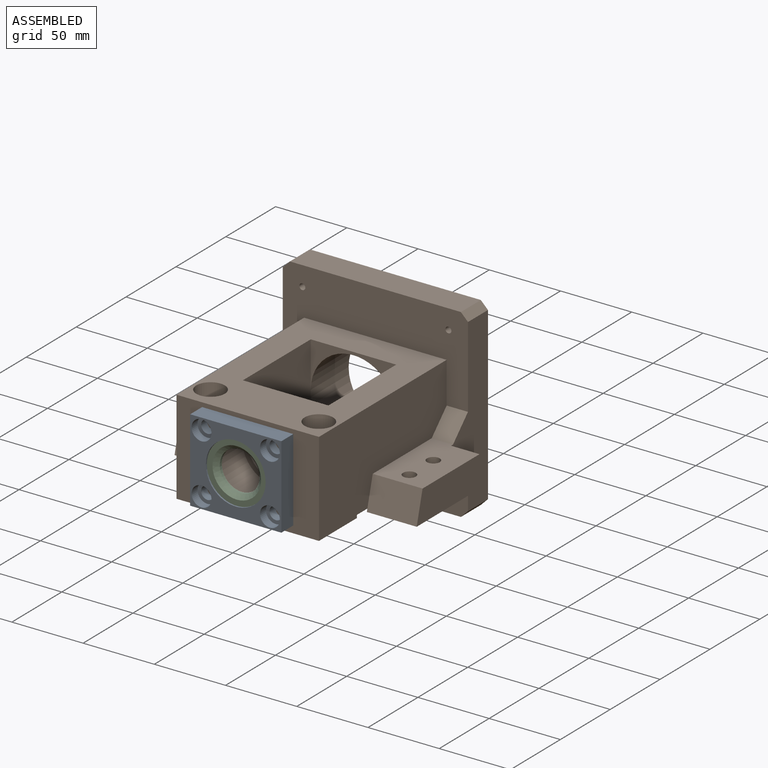
[diagram: assembled view]
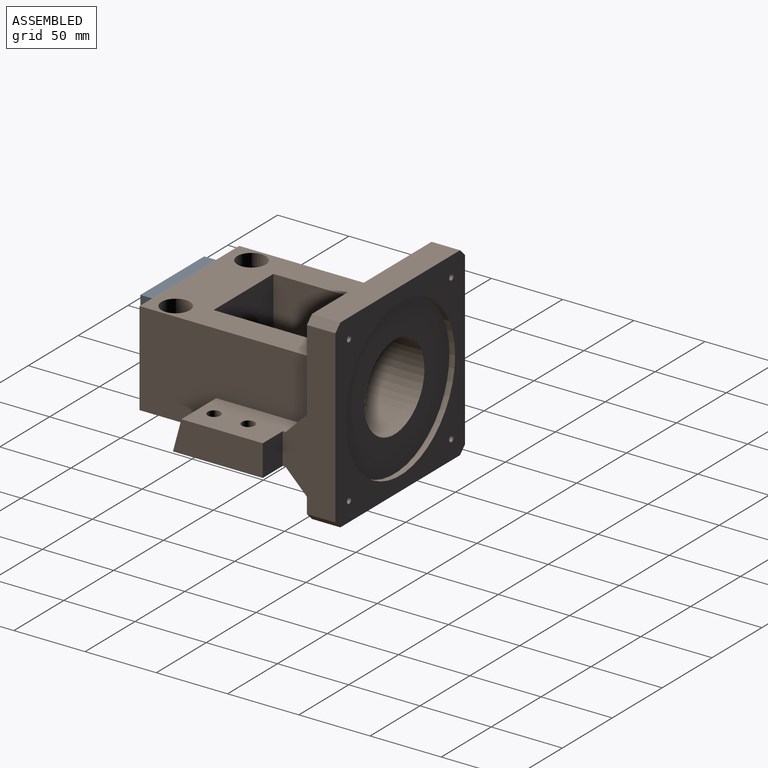
[diagram: assembled view, second angle]
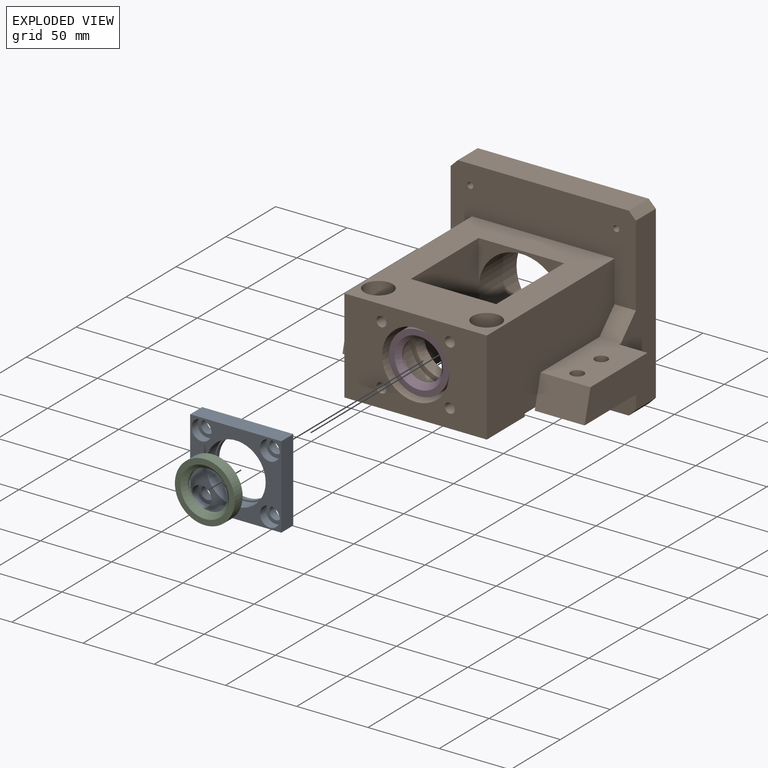
[diagram: exploded view]
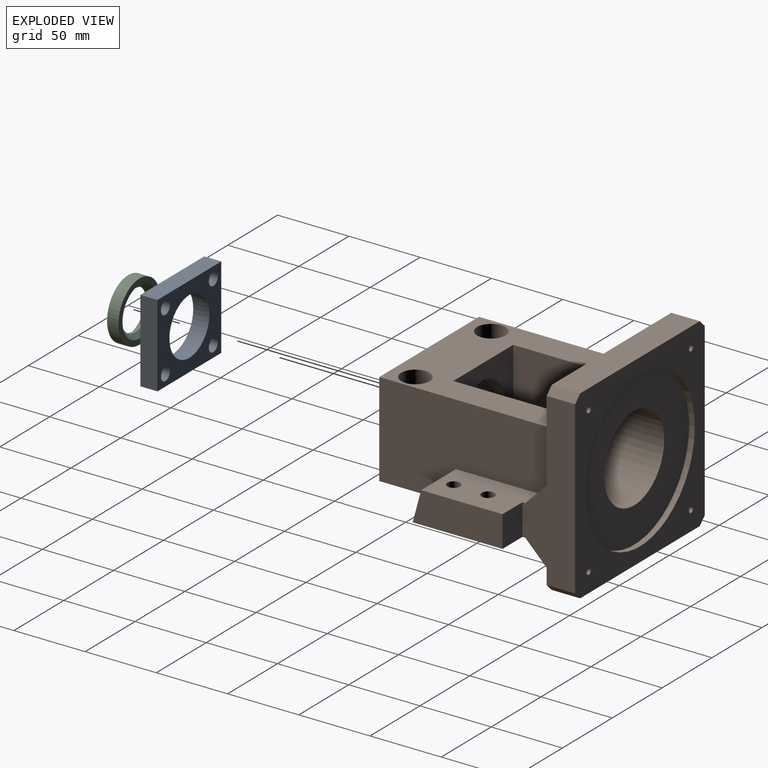
[diagram: exploded view, second angle]
ASSEMBLY  parts=4 mates=3
PART A: 21 faces, bbox 64x12x58 mm
  f0: plane 64x58mm, normal (0,-1,0), area 1710.8mm2, adj f1,f2,f3,f4,f11,f13,f15,f17
  f1: plane 58x12mm, normal (-1,0,0), area 696mm2, adj f0,f2,f4,f5
  f2: plane 64x12mm, normal (0,0,-1), area 768mm2, adj f0,f1,f3,f5
  f3: plane 58x12mm, normal (1,0,0), area 696mm2, adj f0,f2,f4,f5
  f4: plane 64x12mm, normal (0,0,1), area 768mm2, adj f0,f1,f3,f5
  f5: plane 64x58mm, normal (0,1,0), area 2200.9mm2, adj f1,f2,f3,f4,f6,f7,f8,f9
  f6: cylinder r=4.5mm len=9mm, axis (0,1,0), area 169.6mm2, adj f5,f18
  f7: cylinder r=4.5mm len=9mm, axis (0,1,0), area 169.6mm2, adj f5,f16
  f8: cylinder r=4.5mm len=9mm, axis (0,1,0), area 169.6mm2, adj f5,f14
  f9: cylinder r=4.5mm len=9mm, axis (0,1,0), area 169.6mm2, adj f5,f12
  f10: cylinder r=20mm len=40mm, axis (0,-1,0), area 377mm2, adj f5,f20
  f11: cylinder r=7mm len=14mm, axis (0,-1,0), area 263.9mm2, adj f0,f12
  f12: plane 14x14mm, normal (0,-1,0), area 90.3mm2, adj f9,f11
  f13: cylinder r=7mm len=14mm, axis (0,-1,0), area 263.9mm2, adj f0,f14
  f14: plane 14x14mm, normal (0,-1,0), area 90.3mm2, adj f8,f13
  f15: cylinder r=7mm len=14mm, axis (0,-1,0), area 263.9mm2, adj f0,f16
  f16: plane 14x14mm, normal (0,-1,0), area 90.3mm2, adj f7,f15
  f17: cylinder r=7mm len=14mm, axis (0,-1,0), area 263.9mm2, adj f0,f18
  f18: plane 14x14mm, normal (0,-1,0), area 90.3mm2, adj f6,f17
  f19: cylinder r=21mm len=42mm, axis (0,-1,0), area 1187.5mm2, adj f0,f20
  f20: plane 42x42mm, normal (0,-1,0), area 128.8mm2, adj f10,f19
PART B: 68 faces, bbox 170x148x130 mm
  f0: plane 100x66mm, normal (0,1,0), area 2654.6mm2, adj f11,f12,f14,f15,f16,f17,f33,f66
  f1: cylinder r=20mm len=40mm, axis (0,-1,0), area 251.3mm2, adj f24,f67
  f2: plane 120x20mm, normal (0,0,-1), area 2400mm2, adj f40,f42,f59,f61
  f3: plane 120x20mm, normal (0,0,1), area 2400mm2, adj f41,f43,f59,f60
  f4: plane 120x37mm, normal (-1,0,0), area 2999mm2, adj f10,f22,f30,f40,f41,f59,f60,f61
  f5: plane 120x37mm, normal (1,0,0), area 2999mm2, adj f20,f21,f32,f42,f43,f59,f60,f61
  f6: cylinder r=4.5mm len=56mm, axis (0,0,1), area 1583.4mm2, adj f33,f56
  f7: cylinder r=4.5mm len=56mm, axis (0,0,1), area 1583.4mm2, adj f33,f54
  f8: plane 63x22mm, normal (1,0,0), area 1321.2mm2, adj f20,f21,f32,f39
  f9: plane 63x22mm, normal (-1,0,0), area 1321.2mm2, adj f10,f22,f30,f38
  f10: plane 59.11x35mm, normal (0,0,1), area 1901.4mm2, adj f4,f9,f12,f22,f34,f35,f38,f64
  f11: plane 100x90mm, normal (0,0,-1), area 4920mm2, adj f0,f12,f14,f16,f17,f18,f29,f31
  f12: plane 128x66mm, normal (-1,0,0), area 6619.8mm2, adj f0,f10,f11,f15,f33,f38,f44,f60
  f13: plane 60x32mm, normal (0,-1,0), area 506.3mm2, adj f15,f16,f17,f19
  f14: plane 128x66mm, normal (1,0,0), area 6619.8mm2, adj f0,f11,f15,f20,f33,f39,f44,f60
  f15: plane 128x100mm, normal (0,0,1), area 8091.7mm2, adj f0,f12,f13,f14,f16,f17,f44,f53
  f16: plane 68x64mm, normal (1,0,0), area 4352mm2, adj f0,f11,f13,f15,f18
  f17: plane 68x64mm, normal (-1,0,0), area 4352mm2, adj f0,f11,f13,f15,f18
  f18: plane 60x32mm, normal (0,-1,0), area 506.3mm2, adj f11,f16,f17,f19
  f19: cylinder r=30mm len=60mm, axis (0,1,0), area 7162.8mm2, adj f13,f18,f57
  f20: plane 59.11x35mm, normal (0,0,1), area 1901.4mm2, adj f5,f8,f14,f21,f36,f37,f39,f65
  f21: plane 22x20mm, normal (0,1,0), area 440mm2, adj f5,f8,f20,f32
  f22: plane 22x20mm, normal (0,1,0), area 440mm2, adj f4,f9,f10,f30
  f23: cylinder r=23.5mm len=47mm, axis (0,-1,0), area 4134.3mm2, adj f24,f44
  f24: plane 47x47mm, normal (0,-1,0), area 478.3mm2, adj f1,f23
  f25: cylinder r=2.1mm len=20mm, axis (0,1,0), area 263.9mm2, adj f59,f60
  f26: cylinder r=2.1mm len=20mm, axis (0,1,0), area 263.9mm2, adj f59,f61
  f27: cylinder r=2.1mm len=20mm, axis (0,1,0), area 263.9mm2, adj f59,f61
  f28: cylinder r=2.1mm len=20mm, axis (0,1,0), area 263.9mm2, adj f59,f60
  f29: plane 80x17mm, normal (1,0,0), area 272mm2, adj f11,f30,f38,f61,f63
  f30: plane 65x35mm, normal (0,0,-1), area 2107.8mm2, adj f4,f9,f22,f29,f34,f35,f38,f63
  f31: plane 80x17mm, normal (-1,0,0), area 272mm2, adj f11,f32,f39,f61,f62
  f32: plane 65x35mm, normal (0,0,-1), area 2107.8mm2, adj f5,f8,f21,f31,f36,f37,f39,f62
  f33: plane 100x38mm, normal (0,0,-1), area 3672.8mm2, adj f0,f6,f7,f12,f14,f44
  f34: cylinder r=4.5mm len=22mm, axis (0,0,-1), area 622mm2, adj f10,f30
  f35: cylinder r=4.5mm len=22mm, axis (0,0,-1), area 622mm2, adj f10,f30
  f36: cylinder r=4.5mm len=22mm, axis (0,0,-1), area 622mm2, adj f20,f32
  f37: cylinder r=4.5mm len=22mm, axis (0,0,-1), area 622mm2, adj f20,f32
  f38: plane 35x22mm, normal (0,-0.97,0.26), area 797.2mm2, adj f9,f10,f12,f29,f30
  f39: plane 35x22mm, normal (0,-0.97,0.26), area 797.2mm2, adj f8,f14,f20,f31,f32
  f40: plane 20x5mm, normal (-0.71,0,-0.71), area 141.4mm2, adj f2,f4,f59,f61
  f41: plane 20x5mm, normal (-0.71,0,0.71), area 141.4mm2, adj f3,f4,f59,f60
  f42: plane 20x5mm, normal (0.71,0,-0.71), area 141.4mm2, adj f2,f5,f59,f61
  f43: plane 20x5mm, normal (0.71,0,0.71), area 141.4mm2, adj f3,f5,f59,f60
  f44: plane 100x66mm, normal (0,-1,0), area 4711.1mm2, adj f12,f14,f15,f23,f33,f46,f48,f50
  f45: cone r=0mm half-angle=59deg, axis (0,-1,0), area 44.9mm2, adj f46
  f46: cylinder r=3.5mm len=27mm, axis (0,-1,0), area 593.8mm2, adj f44,f45
  f47: cone r=0mm half-angle=59deg, axis (0,-1,0), area 44.9mm2, adj f48
  f48: cylinder r=3.5mm len=27mm, axis (0,-1,0), area 593.8mm2, adj f44,f47
  f49: cone r=0mm half-angle=59deg, axis (0,-1,0), area 44.9mm2, adj f50
  f50: cylinder r=3.5mm len=27mm, axis (0,-1,0), area 593.8mm2, adj f44,f49
  f51: cone r=0mm half-angle=59deg, axis (0,-1,0), area 44.9mm2, adj f52
  f52: cylinder r=3.5mm len=27mm, axis (0,-1,0), area 593.8mm2, adj f44,f51
  f53: cylinder r=10mm len=20mm, axis (0,0,1), area 628.3mm2, adj f15,f54
  f54: plane 20x20mm, normal (0,0,1), area 250.5mm2, adj f7,f53
  f55: cylinder r=10mm len=20mm, axis (0,0,1), area 628.3mm2, adj f15,f56
  f56: plane 20x20mm, normal (0,0,1), area 250.5mm2, adj f6,f55
  f57: plane 110x110mm, normal (0,1,0), area 6675.9mm2, adj f19,f58
  f58: cylinder r=55mm len=110mm, axis (0,-1,0), area 1382.3mm2, adj f57,f59
  f59: plane 130x130mm, normal (0,1,0), area 7291.3mm2, adj f2,f3,f4,f5,f25,f26,f27,f28
  f60: plane 130x62mm, normal (0,-1,0), area 5107.3mm2, adj f3,f4,f5,f12,f14,f15,f25,f28
  f61: plane 130x33mm, normal (0,-1,0), area 3727.3mm2, adj f2,f4,f5,f11,f26,f27,f29,f31
  f62: plane 15x15mm, normal (0,-0.71,-0.71), area 318.2mm2, adj f5,f31,f32,f61
  f63: plane 15x15mm, normal (0,-0.71,-0.71), area 318.2mm2, adj f4,f29,f30,f61
  f64: plane 15x15mm, normal (0,-0.71,0.71), area 318.2mm2, adj f4,f10,f12,f60
  f65: plane 15x15mm, normal (0,-0.71,0.71), area 318.2mm2, adj f5,f14,f20,f60
  f66: cylinder r=21mm len=42mm, axis (0,1,0), area 1055.6mm2, adj f0,f67
  f67: plane 42x42mm, normal (0,1,0), area 128.8mm2, adj f1,f66
PART C: 6 faces, bbox 42x8x42 mm
  f0: cylinder r=14mm len=28mm, axis (0,1,0), area 175.9mm2, adj f4,f5
  f1: cylinder r=21mm len=42mm, axis (0,1,0), area 1055.6mm2, adj f2,f3
  f2: plane 42x42mm, normal (0,-1,0), area 477.5mm2, adj f1,f4
  f3: plane 42x42mm, normal (0,1,0), area 477.5mm2, adj f1,f5
  f4: cone r=14mm half-angle=45deg, axis (0,-1,0), area 413.2mm2, adj f0,f2
  f5: cone r=17mm half-angle=45deg, axis (0,1,0), area 413.2mm2, adj f0,f3
PART D: same geometry as C
PLACE A t=(-75.61,50.22,-14.66)mm
PLACE B t=(-75.61,7.22,-14.66)mm
PLACE C rot(axis=(1,0,0),180deg) t=(-256.08,-130.78,-14.66)mm
PLACE D t=(-256.08,-81.78,-14.66)mm
MATE fastened A.f10 <-> B.f1  axis (0,-1,0) through (-75.61,-119.78,-14.66)mm
MATE fastened C.f0 <-> A.f10  axis (0,1,0) through (-75.61,-122.78,-14.66)mm
MATE fastened D.f0 <-> B.f1  axis (0,-1,0) through (-75.61,-89.78,-14.66)mm
